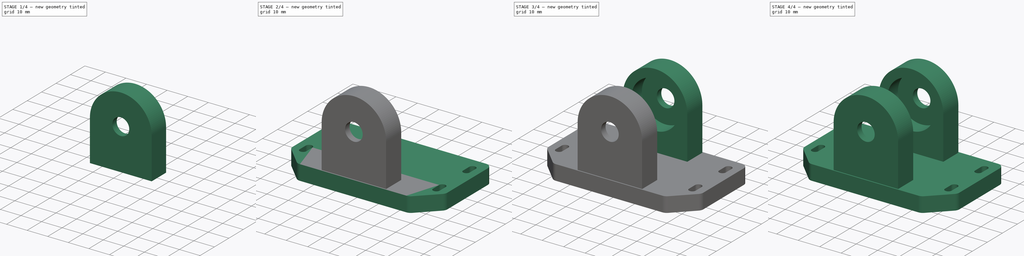
[diagram: build sequence overview — one tinted view per stage of 4, left to right]
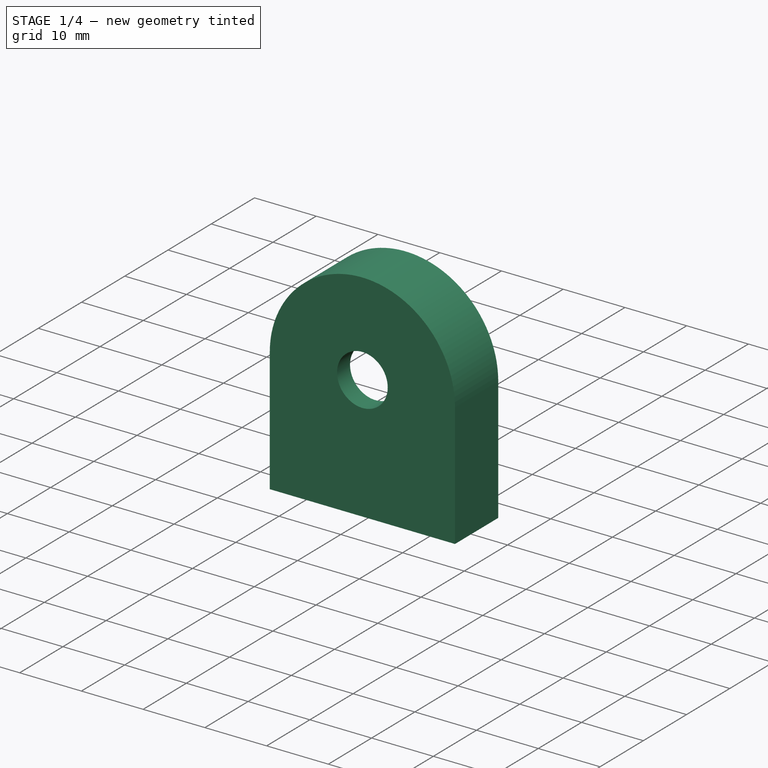
[diagram: stage 1 of 4 — iso view after this stage's code; geometry added in this stage tinted green]
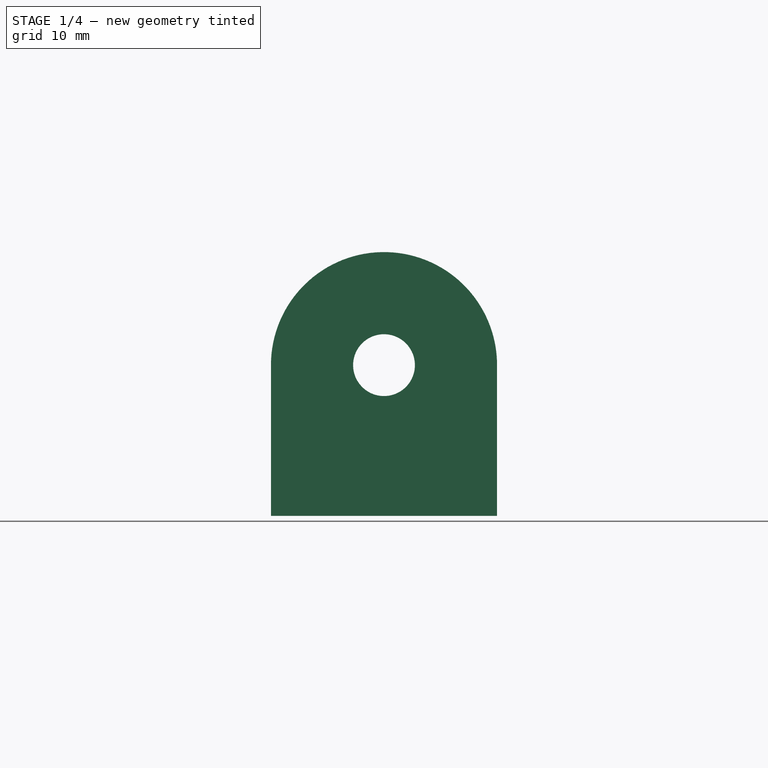
[diagram: stage 1 of 4 — front view after this stage's code; geometry added in this stage tinted green]
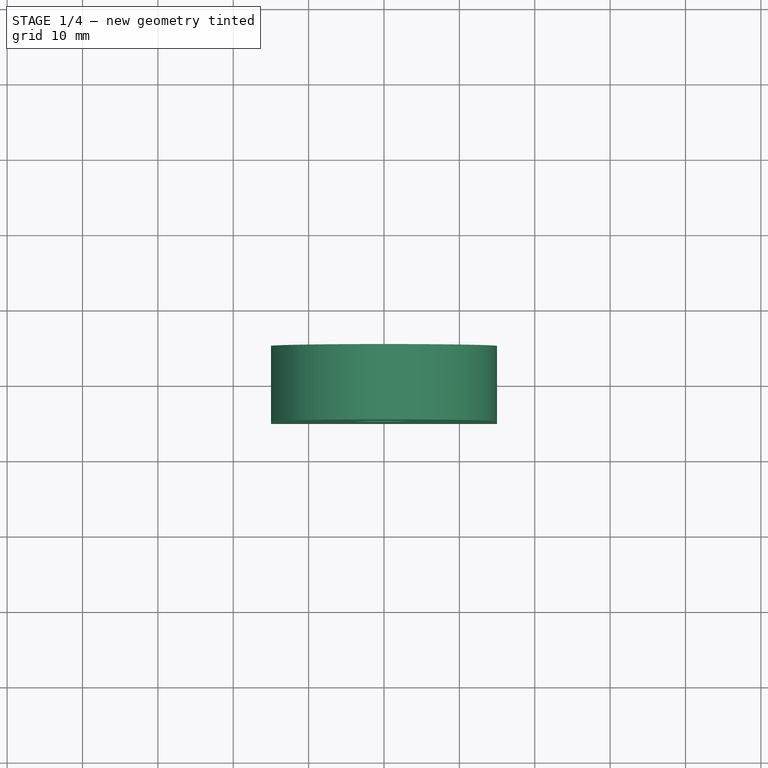
[diagram: stage 1 of 4 — top view after this stage's code; geometry added in this stage tinted green]
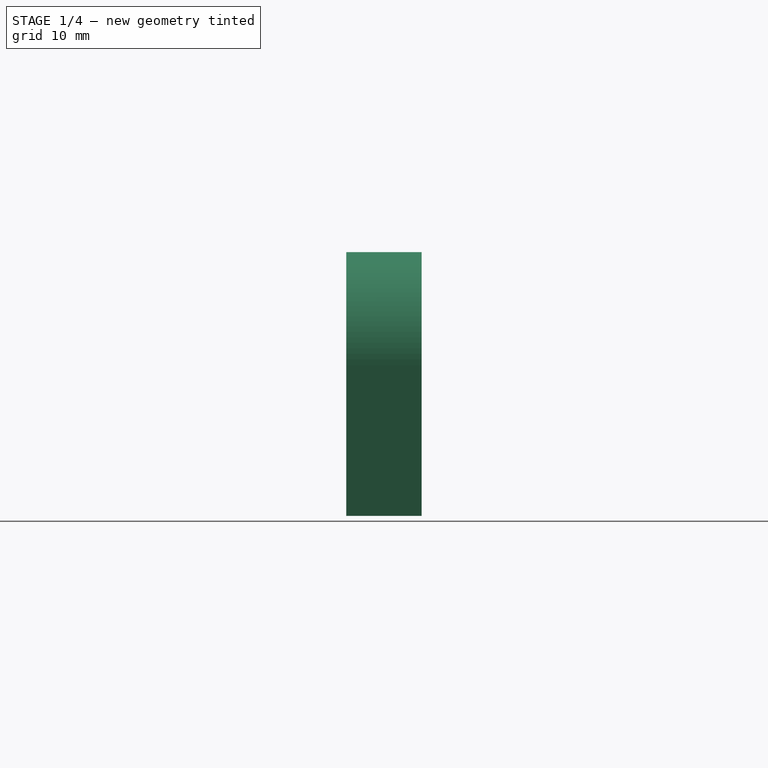
[diagram: stage 1 of 4 — right view after this stage's code; geometry added in this stage tinted green]
FCSTD DOCUMENT  (FreeCAD 0.16R6698 (Git))
Label: Z-belt-clamp-buttom
License: All rights reserved
LicenseURL: http://de.wikipedia.org/wiki/Alle_Rechte_vorbehalten
objects: Sketcher::SketchObject×5, PartDesign::Pad×3, Part::Fuse×3, PartDesign::Pocket×2, PartDesign::Fillet×1
note: 19 computed .brp shape members not serialized (recipe doc carries the construction recipe); baked Part::Feature solids carry a one-line shape summary decoded from their .brp

FEATURE [Sketcher::SketchObject] Sketch004
  Placement = pos=(0,-15,0) rot=(1,0,0;1.5708rad)
  sketch-geometry (5):
    g0: LineSegment StartX=-15 StartY=7 StartZ=0 EndX=15 EndY=7 EndZ=0
    g1: LineSegment StartX=15 StartY=7 StartZ=0 EndX=15 EndY=27 EndZ=0
    g2: LineSegment StartX=-15 StartY=7 StartZ=0 EndX=-15 EndY=27 EndZ=0
    g3: ArcOfCircle CenterX=0 CenterY=27 CenterZ=0 NormalX=0 NormalY=0 NormalZ=1 Radius=15 StartAngle=6.28318 EndAngle=9.42478
    g4: Circle CenterX=0 CenterY=27 CenterZ=0 NormalX=0 NormalY=0 NormalZ=1 Radius=4.1
  constraints (14):
    c: Horizontal(g0)
    c: Coincident(g0,g1)
    c: Vertical(g1)
    c: Coincident(g0,g2)
    c: Vertical(g2)
    c: Coincident(g3,g2)
    c: Coincident(g3,g1)
    c: Coincident(g4,g3)
    c: Symmetric(g2,g1,g-2)
    c: DistanceY(g-1,g0) = 7
    c: Radius(g4) = 4.1
    c: Radius(g3) = 15
    c: Tangent(g2,g3)
    c: DistanceY(g2,g2) = 20
FEATURE [PartDesign::Pad] Pad002
  Length = 10
  Length2 = 100
  Placement = pos=(0,-15,0) rot=(1,0,0;1.5708rad)
  Sketch = -> Sketch004
  Type = 0
FEATURE [Sketcher::SketchObject] Sketch005
  ExternalGeometry = -> [Pad002]
  Placement = pos=(0,-15,0) rot=(-1,0,0;1.5708rad)
  Support = -> Pad002 [Face6]
  sketch-geometry (1):
    g0: Circle CenterX=0 CenterY=-27 CenterZ=0 NormalX=0 NormalY=0 NormalZ=1 Radius=11
  constraints (2):
    c: Coincident(g0,g-3)
    c: Radius(g0) = 11
FEATURE [PartDesign::Pocket] Pocket001
  Length = 7
  Placement = pos=(0,-15,0) rot=(1,0,0;1.5708rad)
  Sketch = -> Sketch005
  Type = 0
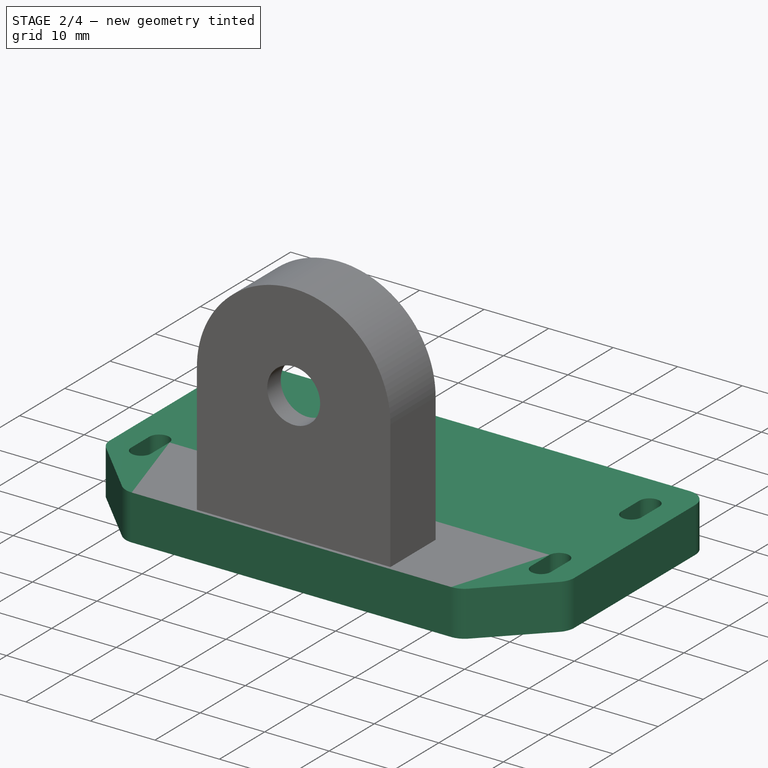
[diagram: stage 2 of 4 — iso view after this stage's code; geometry added in this stage tinted green]
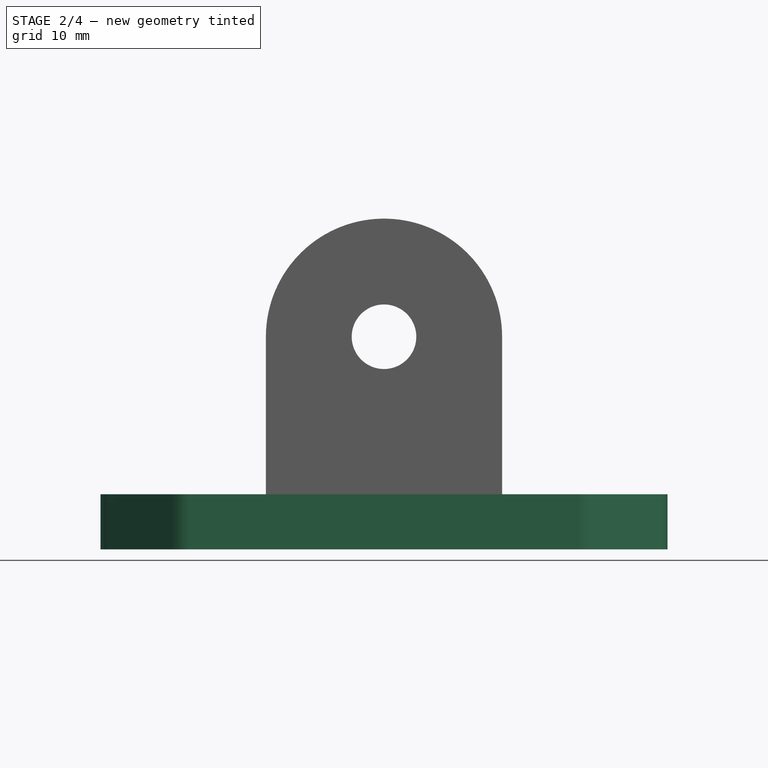
[diagram: stage 2 of 4 — front view after this stage's code; geometry added in this stage tinted green]
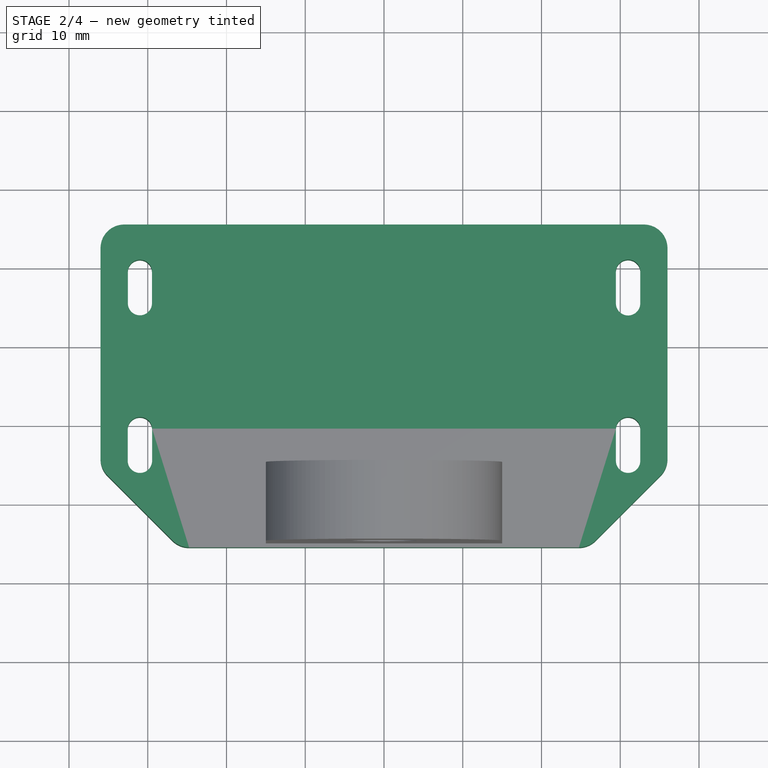
[diagram: stage 2 of 4 — top view after this stage's code; geometry added in this stage tinted green]
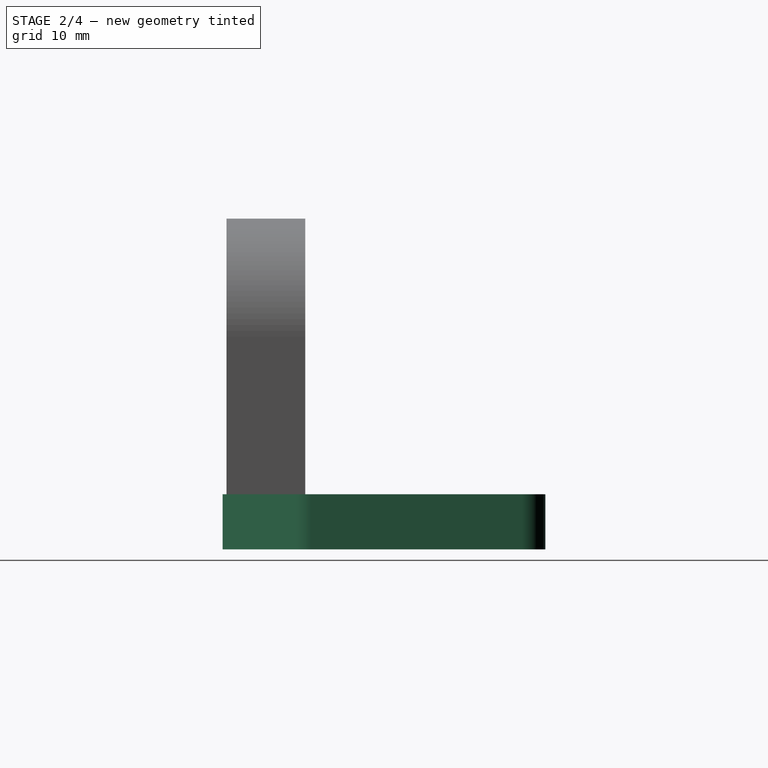
[diagram: stage 2 of 4 — right view after this stage's code; geometry added in this stage tinted green]
FEATURE [Sketcher::SketchObject] Sketch
  sketch-geometry (22):
    g0: LineSegment StartX=-36 StartY=15.5 StartZ=0 EndX=-36 EndY=-15.5 EndZ=0
    g1: LineSegment StartX=-36 StartY=-15.5 StartZ=0 EndX=-26 EndY=-25.5 EndZ=0
    g2: LineSegment StartX=-26 StartY=-25.5 StartZ=0 EndX=26 EndY=-25.5 EndZ=0
    g3: LineSegment StartX=26 StartY=-25.5 StartZ=0 EndX=36 EndY=-15.5 EndZ=0
    g4: LineSegment StartX=36 StartY=-15.5 StartZ=0 EndX=36 EndY=15.5 EndZ=0
    g5: LineSegment StartX=36 StartY=15.5 StartZ=0 EndX=-36 EndY=15.5 EndZ=0
    g6: LineSegment StartX=-32.5303 StartY=9.5 StartZ=0 EndX=-32.5303 EndY=5.5 EndZ=0
    g7: LineSegment StartX=-29.4697 StartY=9.5 StartZ=0 EndX=-29.4697 EndY=5.5 EndZ=0
    g8: ArcOfCircle CenterX=-31 CenterY=5.5 CenterZ=0 NormalX=0 NormalY=0 NormalZ=1 Radius=1.53033 StartAngle=3.14159 EndAngle=6.28319
    g9: ArcOfCircle CenterX=-31 CenterY=9.5 CenterZ=0 NormalX=0 NormalY=0 NormalZ=1 Radius=1.53033 StartAngle=1.51035e-06 EndAngle=3.14159
    g10: LineSegment StartX=-32.55 StartY=-10.5 StartZ=0 EndX=-32.55 EndY=-14.5 EndZ=0
    g11: LineSegment StartX=-29.45 StartY=-10.5 StartZ=0 EndX=-29.45 EndY=-14.5 EndZ=0
    g12: LineSegment StartX=29.45 StartY=-10.5 StartZ=0 EndX=29.45 EndY=-14.5 EndZ=0
    g13: LineSegment StartX=32.55 StartY=-14.5 StartZ=0 EndX=32.55 EndY=-10.5 EndZ=0
    g14: LineSegment StartX=32.55 StartY=9.5 StartZ=0 EndX=32.55 EndY=5.5 EndZ=0
    g15: LineSegment StartX=29.45 StartY=9.5 StartZ=0 EndX=29.45 EndY=5.5 EndZ=0
    g16: ArcOfCircle CenterX=-31 CenterY=-10.5 CenterZ=0 NormalX=0 NormalY=0 NormalZ=1 Radius=1.55 StartAngle=1.49745e-06 EndAngle=3.14159
    g17: ArcOfCircle CenterX=-31 CenterY=-14.5 CenterZ=0 NormalX=0 NormalY=0 NormalZ=1 Radius=1.55 StartAngle=3.14159 EndAngle=6.28319
    g18: ArcOfCircle CenterX=31 CenterY=9.5 CenterZ=0 NormalX=0 NormalY=0 NormalZ=1 Radius=1.55 StartAngle=1.49888e-06 EndAngle=3.14159
    g19: ArcOfCircle CenterX=31 CenterY=5.5 CenterZ=0 NormalX=0 NormalY=0 NormalZ=1 Radius=1.55 StartAngle=3.14159 EndAngle=6.28319
    g20: ArcOfCircle CenterX=31 CenterY=-10.5 CenterZ=0 NormalX=0 NormalY=0 NormalZ=1 Radius=1.55 StartAngle=6.28318 EndAngle=9.42479
    g21: ArcOfCircle CenterX=31 CenterY=-14.5 CenterZ=0 NormalX=0 NormalY=0 NormalZ=1 Radius=1.55 StartAngle=3.14159 EndAngle=6.28318
  constraints (73):
    c: Vertical(g0)
    c: Coincident(g0,g1)
    c: Coincident(g1,g2)
    c: Horizontal(g2)
    c: Coincident(g2,g3)
    c: Coincident(g3,g4)
    c: Vertical(g4)
    c: Coincident(g4,g5)
    c: Coincident(g5,g0)
    c: Horizontal(g5)
    c: Symmetric(g0,g3,g-2)
    c: Symmetric(g1,g2,g-2)
    c: Angle(g4,g3) = 2.35619
    c: Symmetric(g0,g0,g-1)
    c: DistanceX(g5,g5) = 72
    c: DistanceX(g1,g1) = 10
    c: DistanceY(g0,g0) = 31
    c: Vertical(g6)
    c: Vertical(g7)
    c: Coincident(g8,g7)
    c: Coincident(g8,g6)
    c: Coincident(g9,g7)
    c: Coincident(g6,g9)
    c: Tangent(g9,g7)
    c: Tangent(g8,g6)
    c: Distance(g9,g8) = 4
    c: Tangent(g7,g8)
    c: Tangent(g9,g6)
    c: Radius(g8) = 1.53033
    c: DistanceY(g9,g0) = 6
    c: DistanceX(g0,g9) = 5
    c: Vertical(g10)
    c: Vertical(g11)
    c: Vertical(g12)
    c: Vertical(g13)
    c: Vertical(g14)
    c: Vertical(g15)
    c: Coincident(g16,g11)
    c: Coincident(g16,g10)
    c: Coincident(g17,g11)
    c: Coincident(g17,g10)
    c: Coincident(g18,g14)
    c: Coincident(g18,g15)
    c: Coincident(g19,g14)
    c: Coincident(g19,g15)
    c: Coincident(g20,g13)
    c: Coincident(g20,g12)
    c: Coincident(g21,g13)
    c: Coincident(g21,g12)
    c: Tangent(g11,g16)
    c: Tangent(g10,g17)
    c: Tangent(g17,g11)
    c: Tangent(g16,g10)
    c: Tangent(g20,g12)
    c: Tangent(g13,g21)
    c: Tangent(g14,g19)
    c: Tangent(g15,g18)
    c: Tangent(g19,g15)
    c: Tangent(g14,g18)
    c: Tangent(g21,g12)
    c: Tangent(g13,g20)
    c: Distance(g16,g17) = 4
    c: DistanceY(g16,g0) = 26
    c: DistanceX(g0,g16) = 5
    c: Radius(g17) = 1.55
    c: DistanceX(g21,g3) = 5
    c: Radius(g21) = 1.55
    c: Radius(g19) = 1.55
    c: DistanceX(g18,g4) = 5
    c: Distance(g19,g18) = 4
    c: Distance(g21,g20) = 4
    c: DistanceY(g20,g4) = 26
    c: DistanceY(g18,g4) = 6
FEATURE [PartDesign::Pad] Pad  label="Grundplatte"
  Length = 7
  Length2 = 100
  Sketch = -> Sketch
  Type = 0
FEATURE [PartDesign::Fillet] Fillet  label="Grundplatte001"
  Base = -> Pad [Edge8,Edge11,Edge5,Edge14,Edge1,Edge2]
  Radius = 3
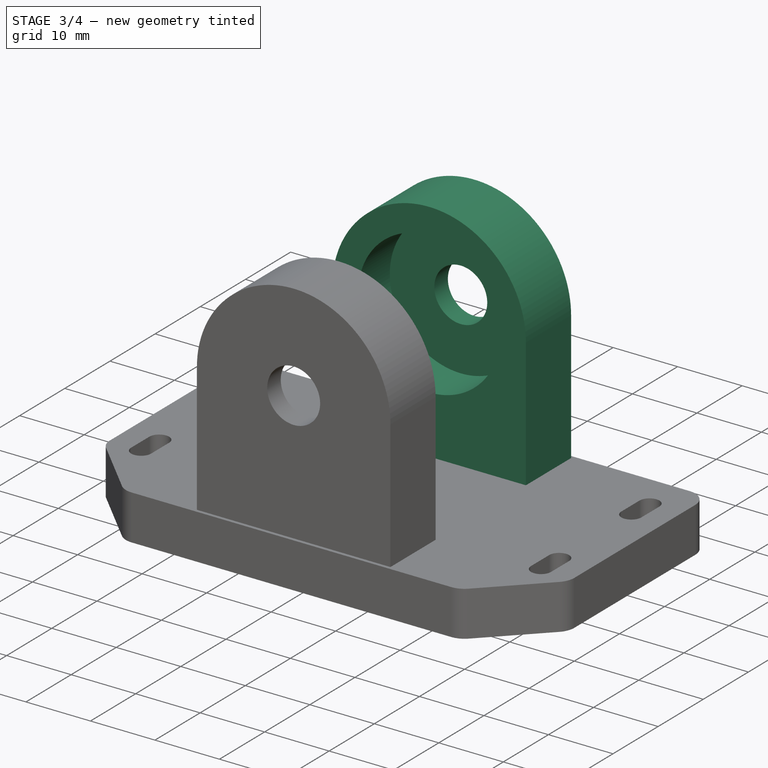
[diagram: stage 3 of 4 — iso view after this stage's code; geometry added in this stage tinted green]
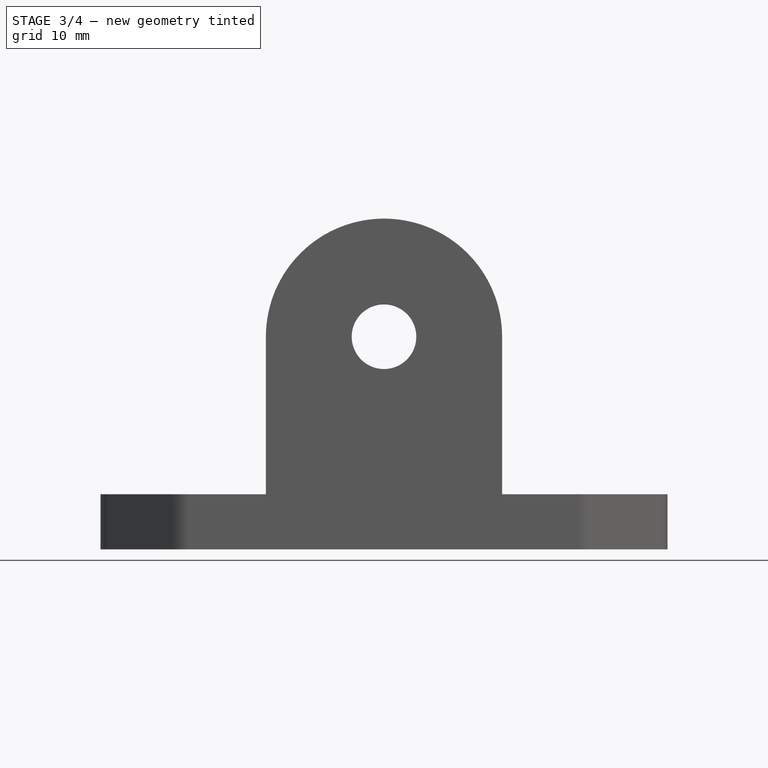
[diagram: stage 3 of 4 — front view after this stage's code; geometry added in this stage tinted green]
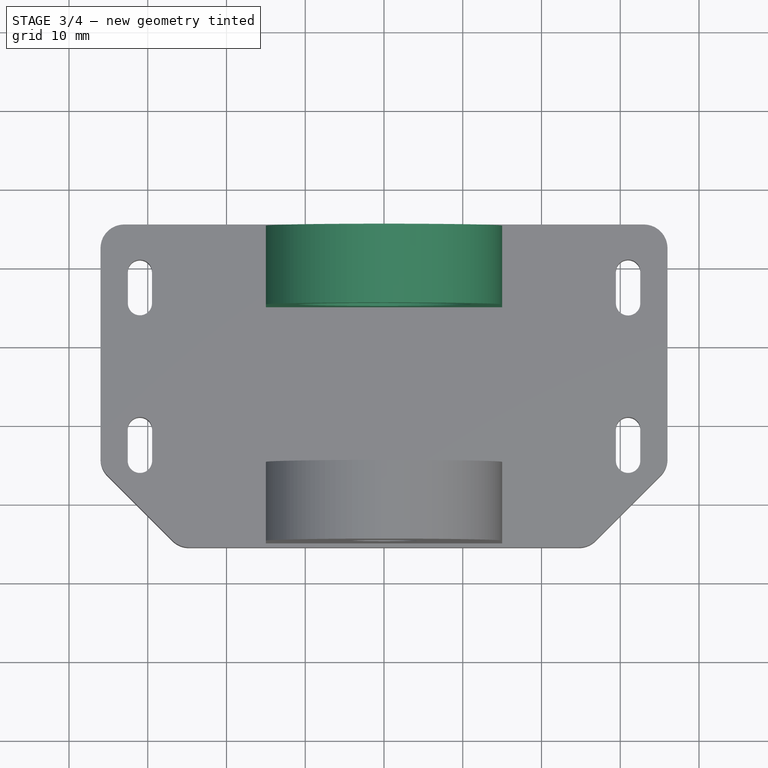
[diagram: stage 3 of 4 — top view after this stage's code; geometry added in this stage tinted green]
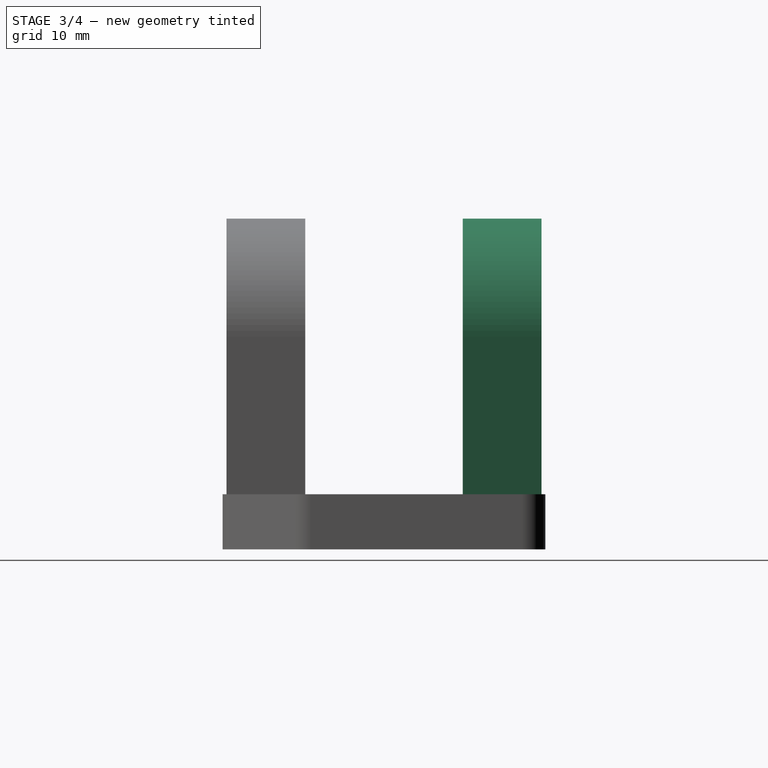
[diagram: stage 3 of 4 — right view after this stage's code; geometry added in this stage tinted green]
FEATURE [Sketcher::SketchObject] Sketch002
  Placement = pos=(0,15,0) rot=(-1,0,0;4.71239rad)
  sketch-geometry (5):
    g0: LineSegment StartX=-15 StartY=7 StartZ=0 EndX=15 EndY=7 EndZ=0
    g1: LineSegment StartX=15 StartY=7 StartZ=0 EndX=15 EndY=27 EndZ=0
    g2: LineSegment StartX=-15 StartY=7 StartZ=0 EndX=-15 EndY=27 EndZ=0
    g3: ArcOfCircle CenterX=0 CenterY=27 CenterZ=0 NormalX=0 NormalY=0 NormalZ=1 Radius=15 StartAngle=6.28318 EndAngle=9.42478
    g4: Circle CenterX=0 CenterY=27 CenterZ=0 NormalX=0 NormalY=0 NormalZ=1 Radius=4.1
  constraints (14):
    c: Horizontal(g0)
    c: Coincident(g0,g1)
    c: Vertical(g1)
    c: Coincident(g0,g2)
    c: Vertical(g2)
    c: Coincident(g3,g2)
    c: Coincident(g3,g1)
    c: Coincident(g4,g3)
    c: Symmetric(g2,g1,g-2)
    c: DistanceY(g-1,g0) = 7
    c: Radius(g4) = 4.1
    c: Radius(g3) = 15
    c: Tangent(g2,g3)
    c: DistanceY(g2,g2) = 20
FEATURE [PartDesign::Pad] Pad001
  Length = 10
  Length2 = 100
  Placement = pos=(0,15,0) rot=(-1,0,0;4.71239rad)
  Sketch = -> Sketch002
  Type = 0
FEATURE [Sketcher::SketchObject] Sketch003
  ExternalGeometry = -> [Pad001]
  Placement = pos=(0,5,0) rot=(1,0,0;1.5708rad)
  Support = -> Pad001 [Face7]
  sketch-geometry (1):
    g0: Circle CenterX=0 CenterY=27 CenterZ=0 NormalX=0 NormalY=0 NormalZ=1 Radius=11
  constraints (2):
    c: Coincident(g0,g-3)
    c: Radius(g0) = 11
FEATURE [PartDesign::Pocket] Pocket  label="Lagerbock"
  Length = 7
  Placement = pos=(0,15,0) rot=(-1,0,0;4.71239rad)
  Sketch = -> Sketch003
  Type = 0
FEATURE [Part::Fuse] Fusion001
  Base = -> Fillet
  Tool = -> Pocket001
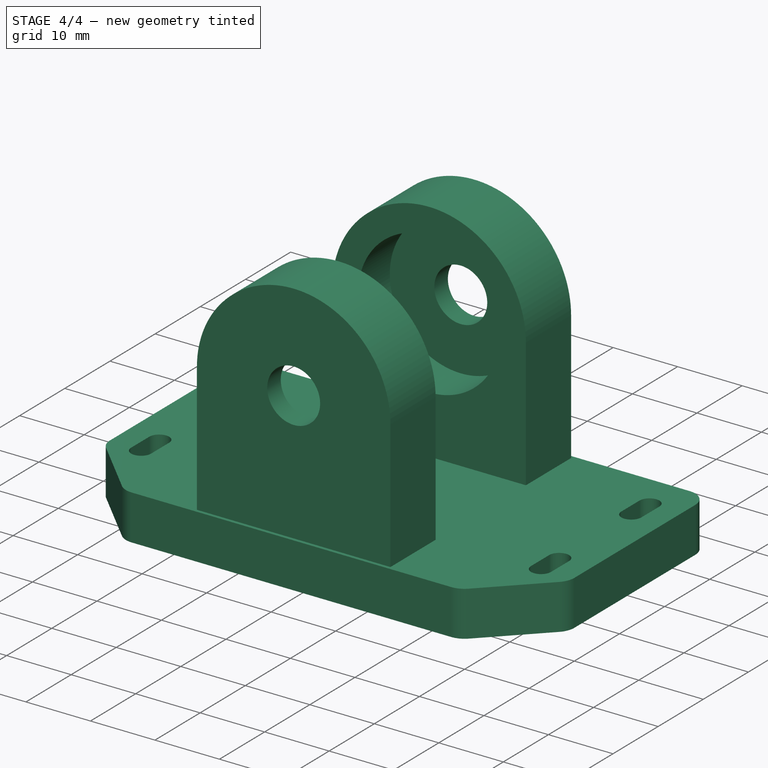
[diagram: stage 4 of 4 — iso view after this stage's code; geometry added in this stage tinted green]
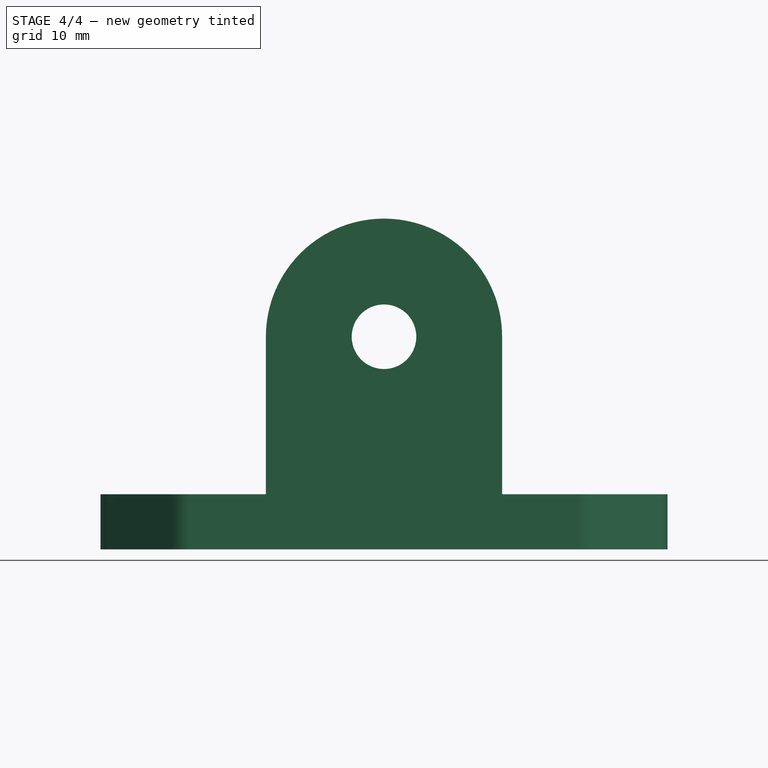
[diagram: stage 4 of 4 — front view after this stage's code; geometry added in this stage tinted green]
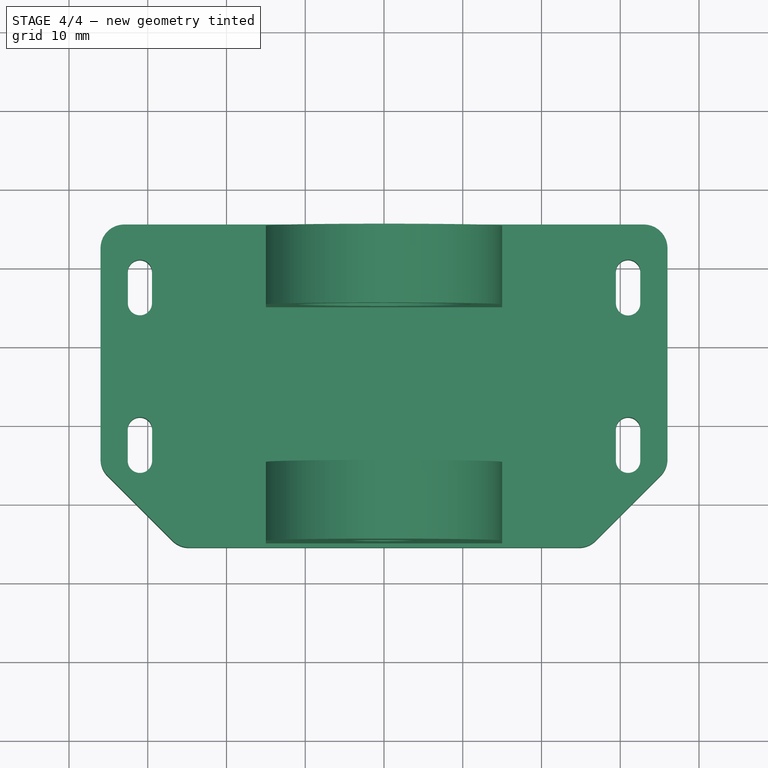
[diagram: stage 4 of 4 — top view after this stage's code; geometry added in this stage tinted green]
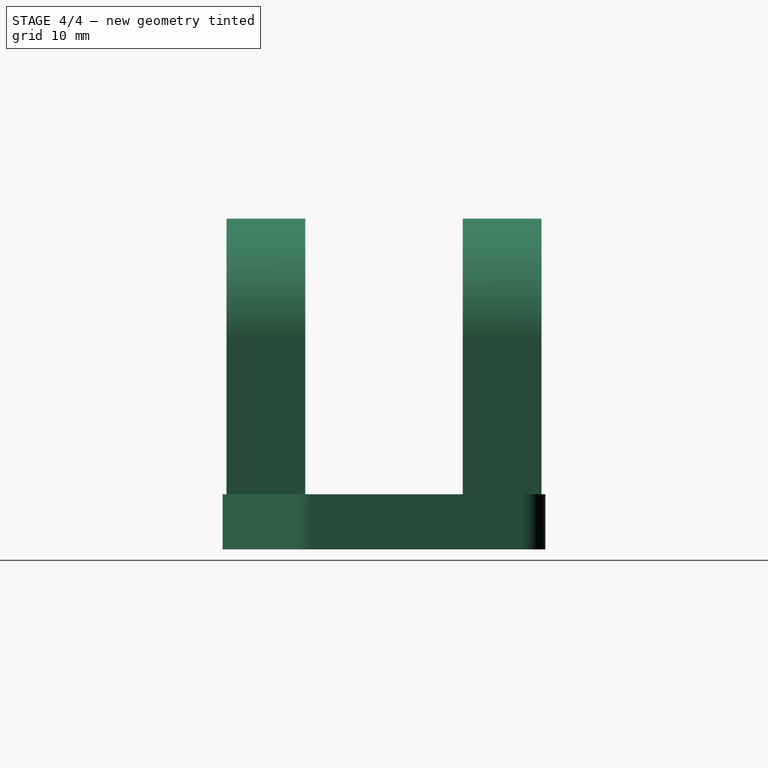
[diagram: stage 4 of 4 — right view after this stage's code; geometry added in this stage tinted green]
FEATURE [Part::Fuse] Fusion
  Base = -> Fillet
  Tool = -> Pocket
FEATURE [Part::Fuse] Fusion002
  Base = -> Fusion
  Tool = -> Fusion001
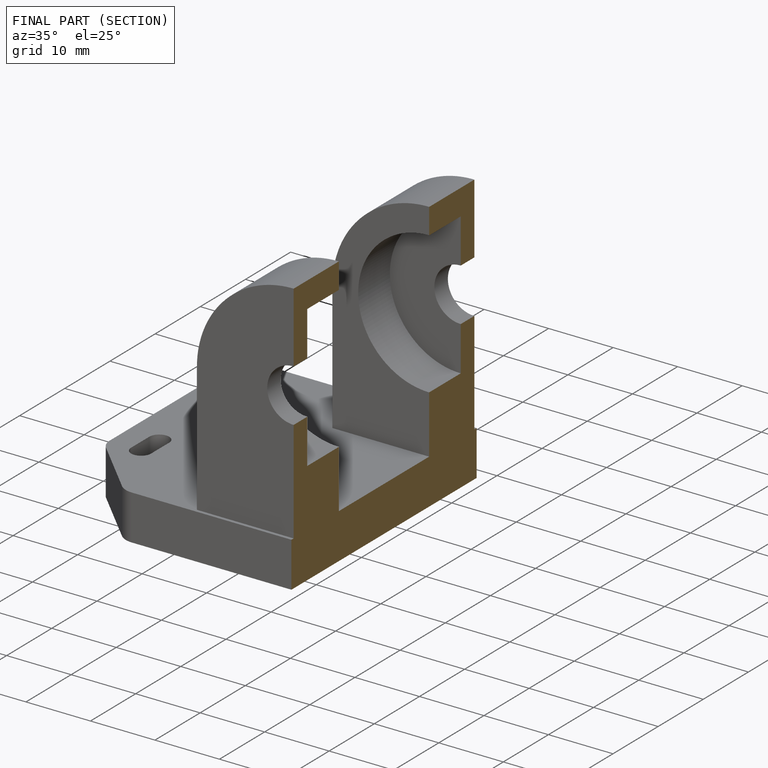
[diagram: finished part — half-section view (interior)]
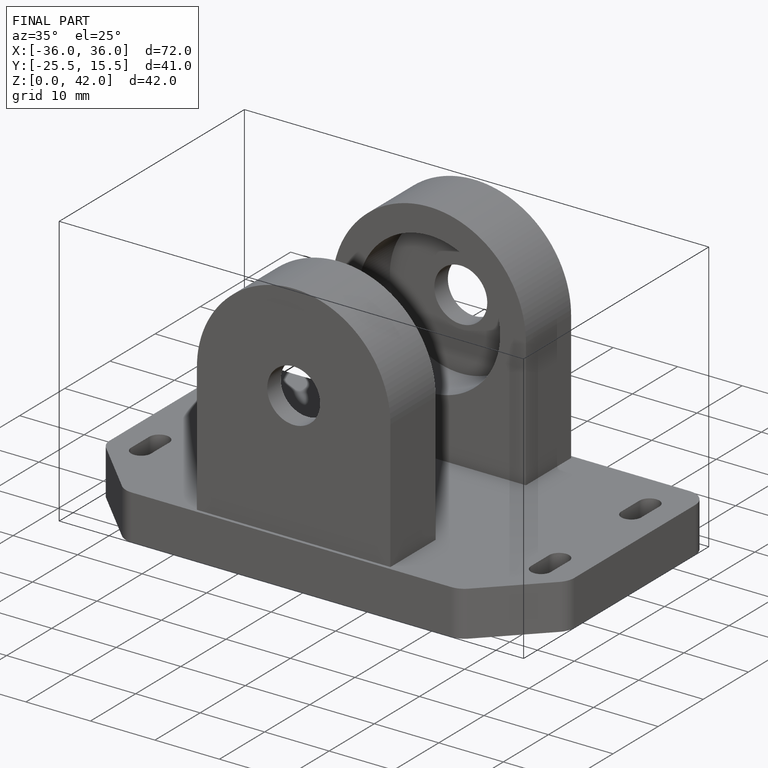
[diagram: finished part — iso view with bounding-box wireframe]
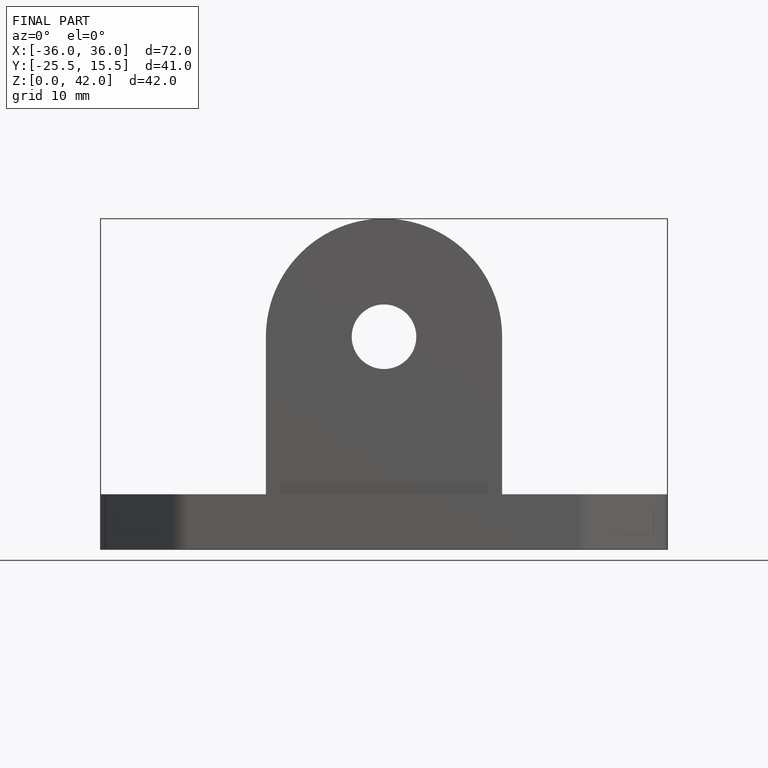
[diagram: finished part — front view with bounding-box wireframe]
